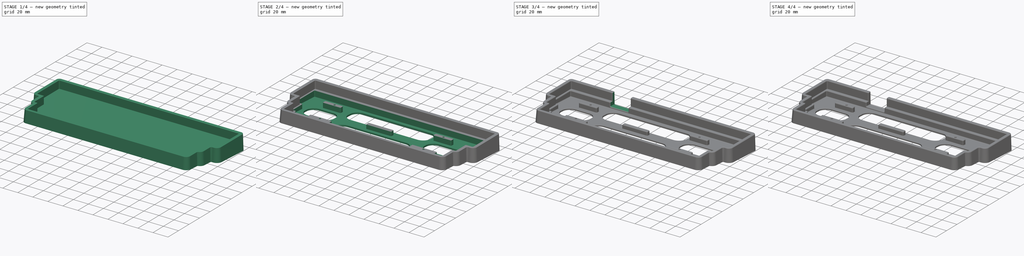
[diagram: build sequence overview — one tinted view per stage of 4, left to right]
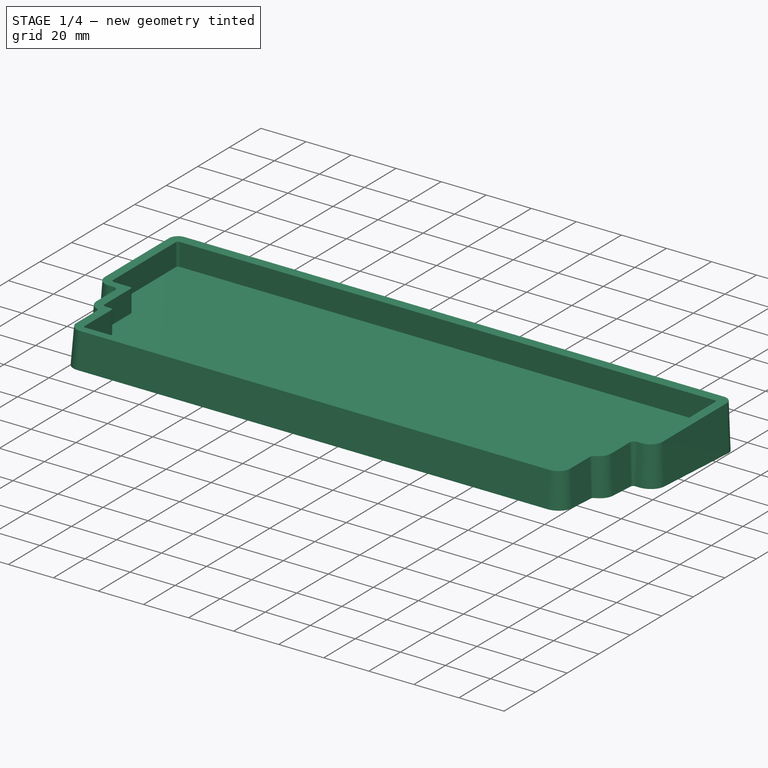
[diagram: stage 1 of 4 — iso view after this stage's code; geometry added in this stage tinted green]
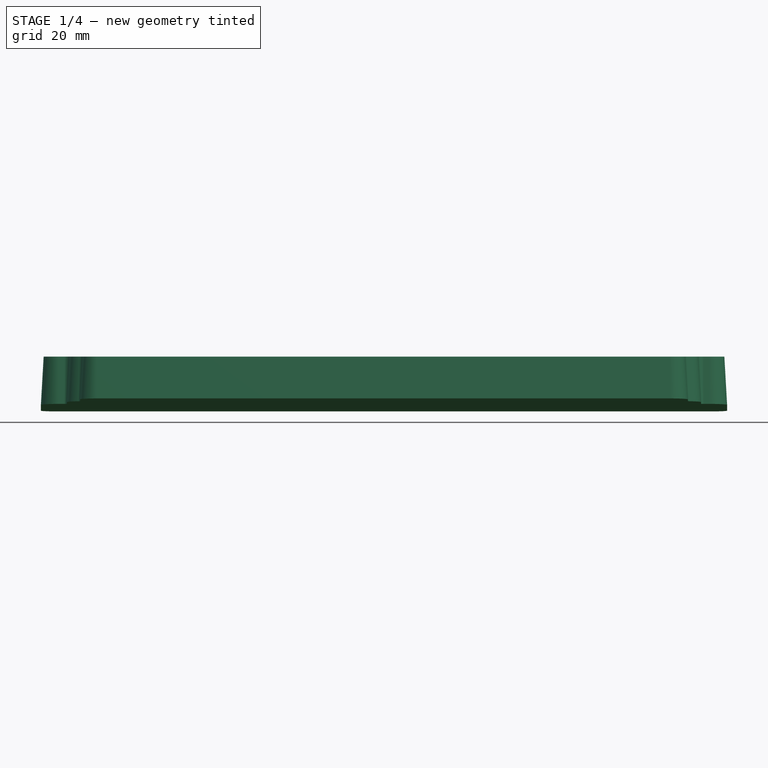
[diagram: stage 1 of 4 — front view after this stage's code; geometry added in this stage tinted green]
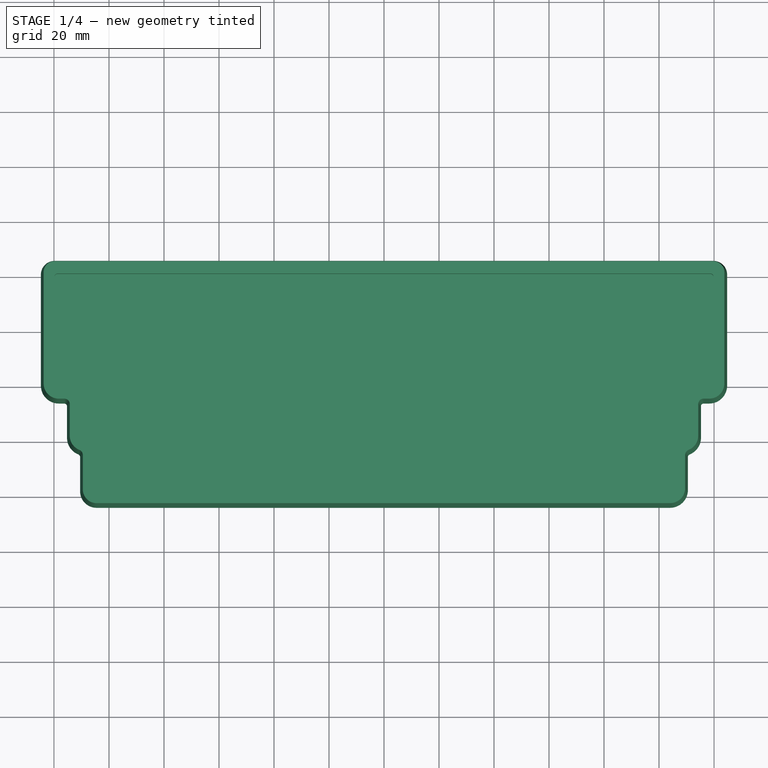
[diagram: stage 1 of 4 — top view after this stage's code; geometry added in this stage tinted green]
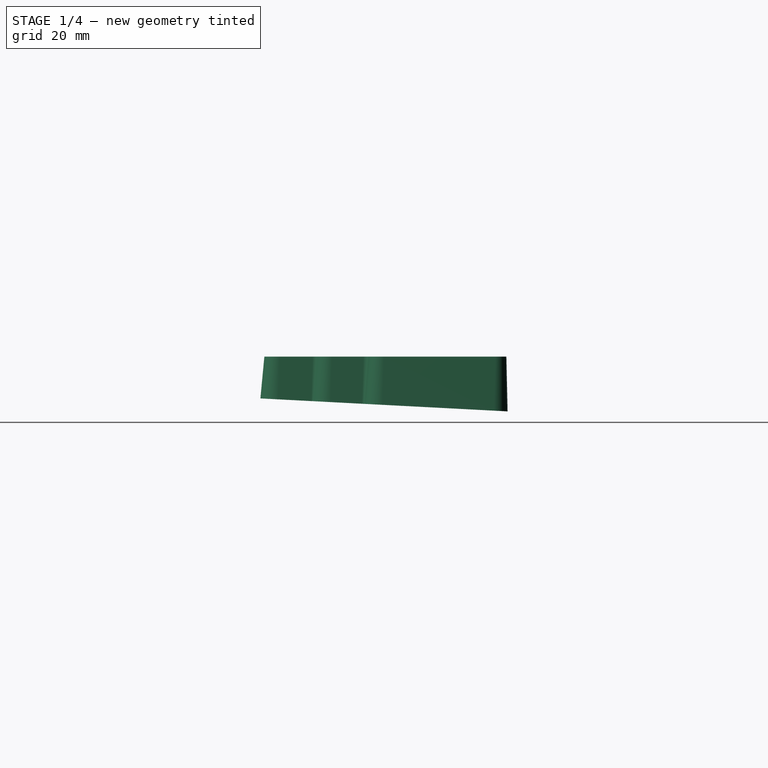
[diagram: stage 1 of 4 — right view after this stage's code; geometry added in this stage tinted green]
FCSTD DOCUMENT  (FreeCAD 0.20R)
Label: case
License: All rights reserved
LicenseURL: http://en.wikipedia.org/wiki/All_rights_reserved
objects: Sketcher::SketchObject×7, PartDesign::Pocket×4, PartDesign::Fillet×3, PartDesign::AdditiveLoft×1, PartDesign::Hole×1, PartDesign::Chamfer×1, PartDesign::Body×1
note: 28 computed .brp shape members not serialized (recipe doc carries the construction recipe); baked Part::Feature solids carry a one-line shape summary decoded from their .brp

FEATURE [Sketcher::SketchObject] Sketch
  AttachmentOffset = pos=(0,0,0) rot=(1,0,0;-0.05236rad)
  FullyConstrained = false
  MapMode = 5
  Placement = pos=(0,0,0) rot=(1,0,0;6.23083rad)
  Support = -> [XY_Plane]
  sketch-geometry (22):
    g0: ArcOfCircle CenterX=-118.25 CenterY=0.5 CenterZ=0 NormalX=0 NormalY=0 NormalZ=1 AngleXU=0 Radius=6.5 StartAngle=3.14159 EndAngle=4.71239
    g1: LineSegment StartX=-115.25 StartY=-7 StartZ=0 EndX=-115.25 EndY=-18.5 EndZ=0
    g2: ArcOfCircle CenterX=-116.25 CenterY=-7 CenterZ=0 NormalX=0 NormalY=0 NormalZ=1 AngleXU=0 Radius=1 StartAngle=0 EndAngle=1.5708
    g3: LineSegment StartX=-118.25 StartY=-6 StartZ=0 EndX=-116.25 EndY=-6 EndZ=0
    g4: ArcOfCircle CenterX=-108.75 CenterY=-18.5 CenterZ=0 NormalX=0 NormalY=0 NormalZ=1 AngleXU=0 Radius=6.5 StartAngle=3.14159 EndAngle=4.33697
    g5: ArcOfCircle CenterX=-111.5 CenterY=-25.4776 CenterZ=0 NormalX=0 NormalY=0 NormalZ=1 AngleXU=0 Radius=1 StartAngle=0 EndAngle=1.19537
    g6: LineSegment StartX=-110.5 StartY=-25.4776 StartZ=0 EndX=-110.5 EndY=-38 EndZ=0
    g7: ArcOfCircle CenterX=-104.5 CenterY=-38 CenterZ=0 NormalX=0 NormalY=0 NormalZ=1 AngleXU=0 Radius=6 StartAngle=3.14159 EndAngle=4.71239
    g8: ArcOfCircle CenterX=104 CenterY=-37.5 CenterZ=0 NormalX=0 NormalY=0 NormalZ=1 AngleXU=0 Radius=6.5 StartAngle=4.71239 EndAngle=6.28319
    g9: LineSegment StartX=110.5 StartY=-25.4776 StartZ=0 EndX=110.5 EndY=-37.5 EndZ=0
    g10: ArcOfCircle CenterX=108.75 CenterY=-18.5 CenterZ=0 NormalX=0 NormalY=0 NormalZ=1 AngleXU=0 Radius=6.5 StartAngle=5.08781 EndAngle=6.28319
    g11: ArcOfCircle CenterX=111.5 CenterY=-25.4776 CenterZ=0 NormalX=0 NormalY=0 NormalZ=1 AngleXU=0 Radius=1 StartAngle=1.94622 EndAngle=3.14159
    g12: LineSegment StartX=115.25 StartY=-7 StartZ=0 EndX=115.25 EndY=-18.5 EndZ=0
    g13: ArcOfCircle CenterX=118.25 CenterY=0.5 CenterZ=0 NormalX=0 NormalY=0 NormalZ=1 AngleXU=0 Radius=6.5 StartAngle=4.71239 EndAngle=6.28319
    g14: LineSegment StartX=118.25 StartY=-6 StartZ=0 EndX=116.25 EndY=-6 EndZ=0
    g15: ArcOfCircle CenterX=116.25 CenterY=-7 CenterZ=0 NormalX=0 NormalY=0 NormalZ=1 AngleXU=0 Radius=1 StartAngle=1.5708 EndAngle=3.14159
    g16: LineSegment StartX=-104.5 StartY=-44 StartZ=0 EndX=104 EndY=-44 EndZ=0
    g17: LineSegment StartX=124.75 StartY=41 StartZ=0 EndX=124.75 EndY=0.5 EndZ=0
    g18: ArcOfCircle CenterX=119.75 CenterY=41 CenterZ=0 NormalX=0 NormalY=0 NormalZ=1 AngleXU=0 Radius=5 StartAngle=0 EndAngle=1.5708
    g19: LineSegment StartX=-124.75 StartY=41 StartZ=0 EndX=-124.75 EndY=0.5 EndZ=0
    g20: LineSegment StartX=119.75 StartY=46 StartZ=0 EndX=-119.75 EndY=46 EndZ=0
    g21: ArcOfCircle CenterX=-119.75 CenterY=41 CenterZ=0 NormalX=0 NormalY=0 NormalZ=1 AngleXU=0 Radius=5 StartAngle=1.5708 EndAngle=3.14159
  constraints (22):
    c: Coincident(g0,g19)
    c: Coincident(g19,g21)
    c: Coincident(g20,g21)
    c: Coincident(g0,g3)
    c: Coincident(g2,g3)
    c: Coincident(g1,g4)
    c: Coincident(g1,g2)
    c: Coincident(g4,g5)
    c: Coincident(g6,g7)
    c: Coincident(g5,g6)
    c: Coincident(g7,g16)
    c: Coincident(g8,g16)
    c: Coincident(g8,g9)
    c: Coincident(g9,g11)
    c: Coincident(g10,g11)
    c: Coincident(g10,g12)
    c: Coincident(g12,g15)
    c: Coincident(g14,g15)
    c: Coincident(g13,g14)
    c: Coincident(g18,g20)
    c: Coincident(g13,g17)
    c: Coincident(g17,g18)
FEATURE [Sketcher::SketchObject] Sketch001
  AttachmentOffset = pos=(0,0.5,17.5) rot=(0,0,1;0rad)
  FullyConstrained = false
  MapMode = 5
  Placement = pos=(0,0.5,17.5) rot=(0,0,1;0rad)
  Support = -> [XY_Plane]
  sketch-geometry (22):
    g0: ArcOfCircle CenterX=-118.25 CenterY=0.5 CenterZ=0 NormalX=0 NormalY=0 NormalZ=1 AngleXU=0 Radius=5.5 StartAngle=3.14159 EndAngle=4.71239
    g1: ArcOfCircle CenterX=-104.5 CenterY=-38 CenterZ=0 NormalX=0 NormalY=0 NormalZ=1 AngleXU=0 Radius=5 StartAngle=3.14159 EndAngle=4.71239
    g2: ArcOfCircle CenterX=104 CenterY=-37.5 CenterZ=0 NormalX=0 NormalY=0 NormalZ=1 AngleXU=0 Radius=5.5 StartAngle=4.71239 EndAngle=6.28319
    g3: ArcOfCircle CenterX=118.25 CenterY=0.5 CenterZ=0 NormalX=0 NormalY=0 NormalZ=1 AngleXU=0 Radius=5.5 StartAngle=4.71239 EndAngle=6.28319
    g4: LineSegment StartX=118.25 StartY=-5 StartZ=0 EndX=116.25 EndY=-5 EndZ=0
    g5: LineSegment StartX=114.25 StartY=-7 StartZ=0 EndX=114.25 EndY=-18.5 EndZ=0
    g6: ArcOfCircle CenterX=116.25 CenterY=-7 CenterZ=0 NormalX=0 NormalY=0 NormalZ=1 AngleXU=0 Radius=2 StartAngle=1.5708 EndAngle=3.14159
    g7: LineSegment StartX=109.5 StartY=-25.4776 StartZ=0 EndX=109.5 EndY=-37.5 EndZ=0
    g8: ArcOfCircle CenterX=108.75 CenterY=-18.5 CenterZ=0 NormalX=0 NormalY=0 NormalZ=1 AngleXU=0 Radius=5.5 StartAngle=5.08781 EndAngle=6.28319
    g9: ArcOfCircle CenterX=111.5 CenterY=-25.4776 CenterZ=0 NormalX=0 NormalY=0 NormalZ=1 AngleXU=0 Radius=2 StartAngle=1.94622 EndAngle=3.14159
    g10: ArcOfCircle CenterX=-108.75 CenterY=-18.5 CenterZ=0 NormalX=0 NormalY=0 NormalZ=1 AngleXU=0 Radius=5.5 StartAngle=3.14159 EndAngle=4.33697
    g11: LineSegment StartX=-109.5 StartY=-25.4776 StartZ=0 EndX=-109.5 EndY=-38 EndZ=0
    g12: ArcOfCircle CenterX=-111.5 CenterY=-25.4776 CenterZ=0 NormalX=0 NormalY=0 NormalZ=1 AngleXU=0 Radius=2 StartAngle=0 EndAngle=1.19537
    g13: LineSegment StartX=-118.25 StartY=-5 StartZ=0 EndX=-116.25 EndY=-5 EndZ=0
    g14: LineSegment StartX=-114.25 StartY=-7 StartZ=0 EndX=-114.25 EndY=-18.5 EndZ=0
    g15: ArcOfCircle CenterX=-116.25 CenterY=-7 CenterZ=0 NormalX=0 NormalY=0 NormalZ=1 AngleXU=0 Radius=2 StartAngle=0 EndAngle=1.5708
    g16: LineSegment StartX=104 StartY=-43 StartZ=0 EndX=-104.5 EndY=-43 EndZ=0
    g17: LineSegment StartX=123.75 StartY=41 StartZ=0 EndX=123.75 EndY=0.5 EndZ=0
    g18: ArcOfCircle CenterX=119.75 CenterY=41 CenterZ=0 NormalX=0 NormalY=0 NormalZ=1 AngleXU=0 Radius=4 StartAngle=0 EndAngle=1.5708
    g19: LineSegment StartX=-123.75 StartY=41 StartZ=0 EndX=-123.75 EndY=0.5 EndZ=0
    g20: LineSegment StartX=119.75 StartY=45 StartZ=0 EndX=-119.75 EndY=45 EndZ=0
    g21: ArcOfCircle CenterX=-119.75 CenterY=41 CenterZ=0 NormalX=0 NormalY=0 NormalZ=1 AngleXU=0 Radius=4 StartAngle=1.5708 EndAngle=3.14159
  constraints (22):
    c: Coincident(g0,g19)
    c: Coincident(g19,g21)
    c: Coincident(g20,g21)
    c: Coincident(g0,g13)
    c: Coincident(g13,g15)
    c: Coincident(g10,g14)
    c: Coincident(g14,g15)
    c: Coincident(g10,g12)
    c: Coincident(g1,g11)
    c: Coincident(g11,g12)
    c: Coincident(g1,g16)
    c: Coincident(g2,g16)
    c: Coincident(g2,g7)
    c: Coincident(g7,g9)
    c: Coincident(g8,g9)
    c: Coincident(g5,g8)
    c: Coincident(g5,g6)
    c: Coincident(g4,g6)
    c: Coincident(g3,g4)
    c: Coincident(g18,g20)
    c: Coincident(g3,g17)
    c: Coincident(g17,g18)
FEATURE [PartDesign::AdditiveLoft] AdditiveLoft
  Closed = true
  Profile = -> Sketch001
  Ruled = true
  Sections = -> [Sketch]
FEATURE [Sketcher::SketchObject] Sketch002
  FullyConstrained = false
  MapMode = 5
  Placement = pos=(0,0,17.5) rot=(0,0,1;0rad)
  Support = -> [AdditiveLoft]
  sketch-geometry (24):
    g0: ArcOfCircle CenterX=-104.5 CenterY=-38 CenterZ=0 NormalX=0 NormalY=0 NormalZ=1 AngleXU=0 Radius=1 StartAngle=3.14159 EndAngle=4.71239
    g1: ArcOfCircle CenterX=-108.75 CenterY=-18.5 CenterZ=0 NormalX=0 NormalY=0 NormalZ=1 AngleXU=0 Radius=1.5 StartAngle=3.14159 EndAngle=4.71239
    g2: ArcOfCircle CenterX=104 CenterY=-37.5 CenterZ=0 NormalX=0 NormalY=0 NormalZ=1 AngleXU=0 Radius=1.5 StartAngle=4.71239 EndAngle=6.28319
    g3: ArcOfCircle CenterX=108.75 CenterY=-18.5 CenterZ=0 NormalX=0 NormalY=0 NormalZ=1 AngleXU=0 Radius=1.5 StartAngle=4.71239 EndAngle=6.28319
    g4: ArcOfCircle CenterX=118.25 CenterY=0.5 CenterZ=0 NormalX=0 NormalY=0 NormalZ=1 AngleXU=0 Radius=1.5 StartAngle=4.71239 EndAngle=6.28319
    g5: LineSegment StartX=-104.5 StartY=-39 StartZ=0 EndX=104 EndY=-39 EndZ=0
    g6: ArcOfCircle CenterX=-118.25 CenterY=0.5 CenterZ=0 NormalX=0 NormalY=0 NormalZ=1 AngleXU=0 Radius=1.5 StartAngle=3.14159 EndAngle=4.71239
    g7: LineSegment StartX=110.25 StartY=-2 StartZ=0 EndX=110.25 EndY=-18.5 EndZ=0
    g8: LineSegment StartX=118.25 StartY=-1 StartZ=0 EndX=111.25 EndY=-1 EndZ=0
    g9: ArcOfCircle CenterX=111.25 CenterY=-2 CenterZ=0 NormalX=0 NormalY=0 NormalZ=1 AngleXU=0 Radius=1 StartAngle=1.5708 EndAngle=3.14159
    g10: LineSegment StartX=105.5 StartY=-21 StartZ=0 EndX=105.5 EndY=-37.5 EndZ=0
    g11: LineSegment StartX=108.75 StartY=-20 StartZ=0 EndX=106.5 EndY=-20 EndZ=0
    g12: ArcOfCircle CenterX=106.5 CenterY=-21 CenterZ=0 NormalX=0 NormalY=0 NormalZ=1 AngleXU=0 Radius=1 StartAngle=1.5708 EndAngle=3.14159
    g13: LineSegment StartX=-108.75 StartY=-20 StartZ=0 EndX=-106.5 EndY=-20 EndZ=0
    g14: LineSegment StartX=-105.5 StartY=-21 StartZ=0 EndX=-105.5 EndY=-38 EndZ=0
    g15: ArcOfCircle CenterX=-106.5 CenterY=-21 CenterZ=0 NormalX=0 NormalY=0 NormalZ=1 AngleXU=0 Radius=1 StartAngle=0 EndAngle=1.5708
    g16: LineSegment StartX=-118.25 StartY=-1 StartZ=0 EndX=-111.25 EndY=-1 EndZ=0
    g17: LineSegment StartX=-110.25 StartY=-2 StartZ=0 EndX=-110.25 EndY=-18.5 EndZ=0
    g18: ArcOfCircle CenterX=-111.25 CenterY=-2 CenterZ=0 NormalX=0 NormalY=0 NormalZ=1 AngleXU=0 Radius=1 StartAngle=0 EndAngle=1.5708
    g19: LineSegment StartX=119.75 StartY=0.5 StartZ=0 EndX=119.75 EndY=40 EndZ=0
    g20: ArcOfCircle CenterX=118.75 CenterY=40 CenterZ=0 NormalX=0 NormalY=0 NormalZ=1 AngleXU=0 Radius=1 StartAngle=0 EndAngle=1.5708
    g21: LineSegment StartX=118.75 StartY=41 StartZ=0 EndX=-118.75 EndY=41 EndZ=0
    g22: LineSegment StartX=-119.75 StartY=40 StartZ=0 EndX=-119.75 EndY=0.5 EndZ=0
    g23: ArcOfCircle CenterX=-118.75 CenterY=40 CenterZ=0 NormalX=0 NormalY=0 NormalZ=1 AngleXU=0 Radius=1 StartAngle=1.5708 EndAngle=3.14159
  constraints (24):
    c: Coincident(g6,g22)
    c: Coincident(g22,g23)
    c: Coincident(g21,g23)
    c: Coincident(g6,g16)
    c: Coincident(g16,g18)
    c: Coincident(g1,g17)
    c: Coincident(g17,g18)
    c: Coincident(g1,g13)
    c: Coincident(g13,g15)
    c: Coincident(g0,g14)
    c: Coincident(g14,g15)
    c: Coincident(g0,g5)
    c: Coincident(g2,g5)
    c: Coincident(g2,g10)
    c: Coincident(g10,g12)
    c: Coincident(g11,g12)
    c: Coincident(g3,g11)
    c: Coincident(g3,g7)
    c: Coincident(g7,g9)
    c: Coincident(g8,g9)
    c: Coincident(g4,g8)
    c: Coincident(g20,g21)
    c: Coincident(g4,g19)
    c: Coincident(g19,g20)
FEATURE [PartDesign::Pocket] Pocket
  BaseFeature = -> AdditiveLoft
  Direction = (0,0,-1)
  Length = 10
  Length2 = 5
  Profile = -> Sketch002
  ReferenceAxis = -> Sketch002 [N_Axis]
  Type = 0
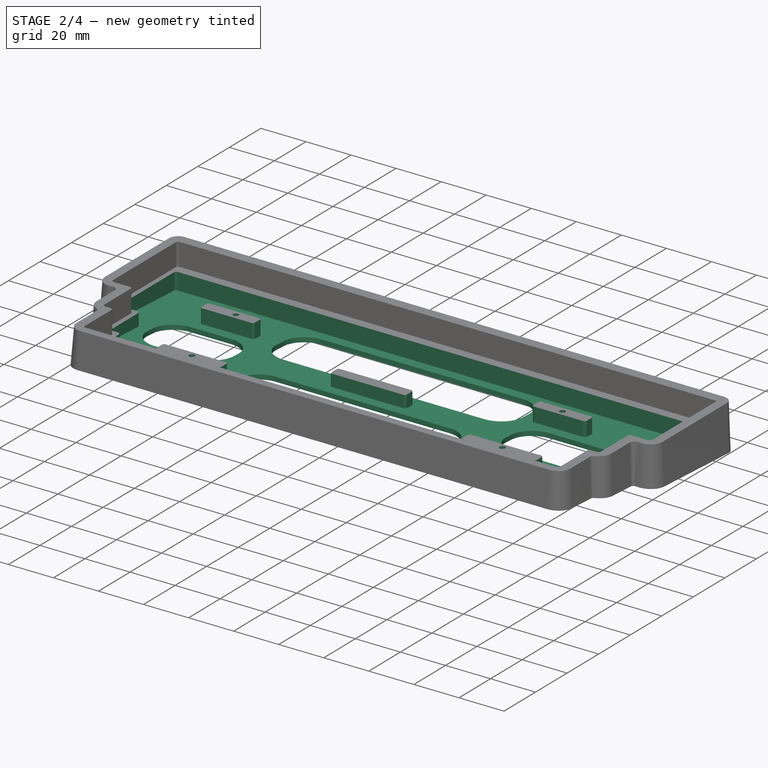
[diagram: stage 2 of 4 — iso view after this stage's code; geometry added in this stage tinted green]
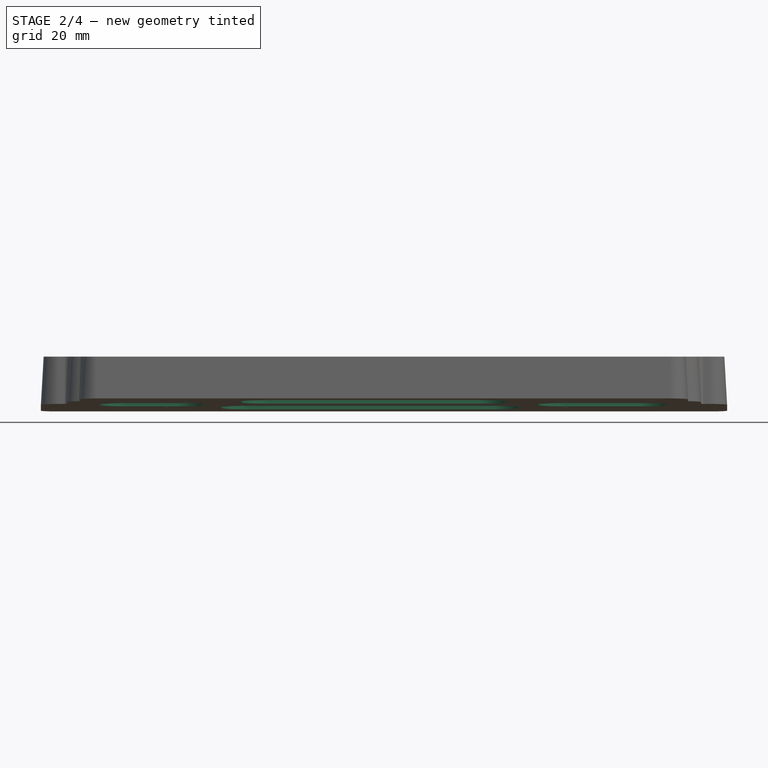
[diagram: stage 2 of 4 — front view after this stage's code; geometry added in this stage tinted green]
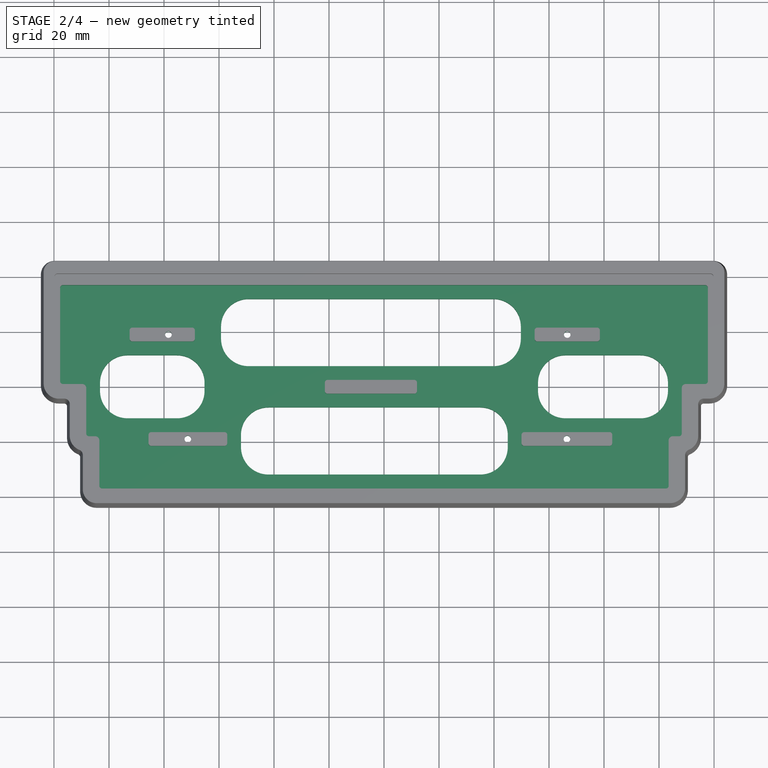
[diagram: stage 2 of 4 — top view after this stage's code; geometry added in this stage tinted green]
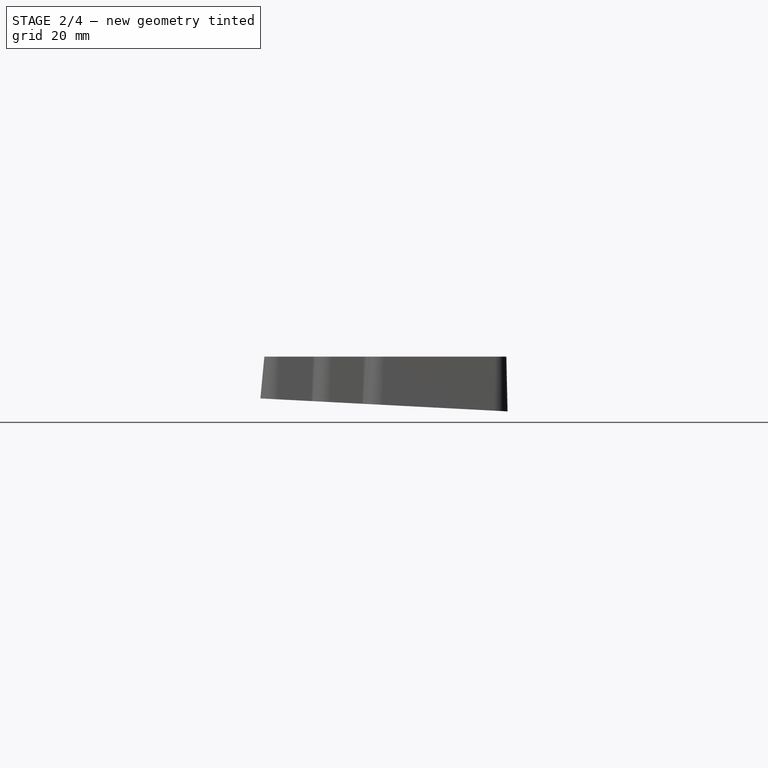
[diagram: stage 2 of 4 — right view after this stage's code; geometry added in this stage tinted green]
FEATURE [Sketcher::SketchObject] Sketch003
  ExternalGeometry = -> [Pocket]
  FullyConstrained = false
  MapMode = 5
  Placement = pos=(0,0,7.5) rot=(0,0,1;0rad)
  Support = -> [Pocket]
  sketch-geometry (64):
    g0: ArcOfCircle CenterX=-109.75 CenterY=-0.5 CenterZ=0 NormalX=0 NormalY=0 NormalZ=1 AngleXU=0 Radius=1.5 StartAngle=0 EndAngle=1.5708
    g1: ArcOfCircle CenterX=-105 CenterY=-19.5 CenterZ=0 NormalX=0 NormalY=0 NormalZ=1 AngleXU=0 Radius=1.5 StartAngle=0 EndAngle=1.5708
    g2: ArcOfCircle CenterX=109.75 CenterY=-0.5 CenterZ=0 NormalX=0 NormalY=0 NormalZ=1 AngleXU=0 Radius=1.5 StartAngle=1.5708 EndAngle=3.14159
    g3: ArcOfCircle CenterX=105 CenterY=-19.5 CenterZ=0 NormalX=0 NormalY=0 NormalZ=1 AngleXU=0 Radius=1.5 StartAngle=1.5708 EndAngle=3.14159
    g4: LineSegment StartX=103.5 StartY=-19.5 StartZ=0 EndX=103.5 EndY=-36 EndZ=0
    g5: ArcOfCircle CenterX=102.5 CenterY=-36 CenterZ=0 NormalX=0 NormalY=0 NormalZ=1 AngleXU=0 Radius=1 StartAngle=4.71239 EndAngle=6.28319
    g6: LineSegment StartX=116.75 StartY=1 StartZ=0 EndX=109.75 EndY=1 EndZ=0
    g7: ArcOfCircle CenterX=116.75 CenterY=2 CenterZ=0 NormalX=0 NormalY=0 NormalZ=1 AngleXU=0 Radius=1 StartAngle=4.71239 EndAngle=6.28319
    g8: LineSegment StartX=117.75 StartY=36 StartZ=0 EndX=117.75 EndY=2 EndZ=0
    g9: ArcOfCircle CenterX=116.75 CenterY=36 CenterZ=0 NormalX=0 NormalY=0 NormalZ=1 AngleXU=0 Radius=1 StartAngle=0 EndAngle=1.5708
    g10: LineSegment StartX=116.75 StartY=37 StartZ=0 EndX=-116.75 EndY=37 EndZ=0
    g11: ArcOfCircle CenterX=-116.75 CenterY=36 CenterZ=0 NormalX=0 NormalY=0 NormalZ=1 AngleXU=0 Radius=1 StartAngle=1.5708 EndAngle=3.14159
    g12: LineSegment StartX=-116.75 StartY=1 StartZ=0 EndX=-109.75 EndY=1 EndZ=0
    g13: LineSegment StartX=-117.75 StartY=36 StartZ=0 EndX=-117.75 EndY=2 EndZ=0
    g14: ArcOfCircle CenterX=-116.75 CenterY=2 CenterZ=0 NormalX=0 NormalY=0 NormalZ=1 AngleXU=0 Radius=1 StartAngle=3.14159 EndAngle=4.71239
    g15: LineSegment StartX=-107.25 StartY=-18 StartZ=0 EndX=-105 EndY=-18 EndZ=0
    g16: LineSegment StartX=-108.25 StartY=-0.5 StartZ=0 EndX=-108.25 EndY=-17 EndZ=0
    g17: ArcOfCircle CenterX=-107.25 CenterY=-17 CenterZ=0 NormalX=0 NormalY=0 NormalZ=1 AngleXU=0 Radius=1 StartAngle=3.14159 EndAngle=4.71239
    g18: LineSegment StartX=-102.5 StartY=-37 StartZ=0 EndX=102.5 EndY=-37 EndZ=0
    g19: LineSegment StartX=-103.5 StartY=-19.5 StartZ=0 EndX=-103.5 EndY=-36 EndZ=0
    g20: ArcOfCircle CenterX=-102.5 CenterY=-36 CenterZ=0 NormalX=0 NormalY=0 NormalZ=1 AngleXU=0 Radius=1 StartAngle=3.14159 EndAngle=4.71239
    g21: LineSegment StartX=107.25 StartY=-18 StartZ=0 EndX=105 EndY=-18 EndZ=0
    g22: LineSegment StartX=108.25 StartY=-0.5 StartZ=0 EndX=108.25 EndY=-17 EndZ=0
    g23: ArcOfCircle CenterX=107.25 CenterY=-17 CenterZ=0 NormalX=0 NormalY=0 NormalZ=1 AngleXU=0 Radius=1 StartAngle=4.71239 EndAngle=6.28319
    g24: LineSegment StartX=77.5 StartY=16.5 StartZ=0 EndX=55.75 EndY=16.5 EndZ=0
    g25: ArcOfCircle CenterX=55.75 CenterY=17.5 CenterZ=0 NormalX=0 NormalY=0 NormalZ=1 AngleXU=-3.14159 Radius=1 StartAngle=0 EndAngle=1.5708
    g26: LineSegment StartX=54.75 StartY=17.5 StartZ=0 EndX=54.75 EndY=20.5 EndZ=0
    g27: ArcOfCircle CenterX=55.75 CenterY=20.5 CenterZ=0 NormalX=0 NormalY=0 NormalZ=1 AngleXU=-3.14159 Radius=1 StartAngle=4.71239 EndAngle=6.28319
    g28: LineSegment StartX=55.75 StartY=21.5 StartZ=0 EndX=77.5 EndY=21.5 EndZ=0
    g29: ArcOfCircle CenterX=77.5 CenterY=20.5 CenterZ=0 NormalX=0 NormalY=0 NormalZ=1 AngleXU=-3.14159 Radius=1 StartAngle=3.14159 EndAngle=4.71239
    g30: LineSegment StartX=78.5 StartY=20.5 StartZ=0 EndX=78.5 EndY=17.5 EndZ=0
    g31: ArcOfCircle CenterX=77.5 CenterY=17.5 CenterZ=0 NormalX=0 NormalY=0 NormalZ=1 AngleXU=-3.14159 Radius=1 StartAngle=1.5708 EndAngle=3.14159
    g32: LineSegment StartX=51 StartY=-16.5 StartZ=0 EndX=82 EndY=-16.5 EndZ=0
    g33: ArcOfCircle CenterX=82 CenterY=-17.5 CenterZ=0 NormalX=0 NormalY=0 NormalZ=1 AngleXU=-3.14159 Radius=1 StartAngle=3.14159 EndAngle=4.71239
    g34: LineSegment StartX=83 StartY=-17.5 StartZ=0 EndX=83 EndY=-20.5 EndZ=0
    g35: ArcOfCircle CenterX=82 CenterY=-20.5 CenterZ=0 NormalX=0 NormalY=0 NormalZ=1 AngleXU=-3.14159 Radius=1 StartAngle=1.5708 EndAngle=3.14159
    g36: LineSegment StartX=82 StartY=-21.5 StartZ=0 EndX=51 EndY=-21.5 EndZ=0
    g37: ArcOfCircle CenterX=51 CenterY=-20.5 CenterZ=0 NormalX=0 NormalY=0 NormalZ=1 AngleXU=-3.14159 Radius=1 StartAngle=0 EndAngle=1.5708
    g38: LineSegment StartX=50 StartY=-20.5 StartZ=0 EndX=50 EndY=-17.5 EndZ=0
    g39: ArcOfCircle CenterX=51 CenterY=-17.5 CenterZ=0 NormalX=0 NormalY=0 NormalZ=1 AngleXU=-3.14159 Radius=1 StartAngle=4.71239 EndAngle=6.28319
    g40: LineSegment StartX=-20.5 StartY=2.5 StartZ=0 EndX=11 EndY=2.5 EndZ=0
    g41: ArcOfCircle CenterX=11 CenterY=1.5 CenterZ=0 NormalX=0 NormalY=0 NormalZ=1 AngleXU=-3.14159 Radius=1 StartAngle=3.14159 EndAngle=4.71239
    g42: LineSegment StartX=12 StartY=1.5 StartZ=0 EndX=12 EndY=-1.5 EndZ=0
    g43: ArcOfCircle CenterX=11 CenterY=-1.5 CenterZ=0 NormalX=0 NormalY=0 NormalZ=1 AngleXU=-3.14159 Radius=1 StartAngle=1.5708 EndAngle=3.14159
    g44: LineSegment StartX=11 StartY=-2.5 StartZ=0 EndX=-20.5 EndY=-2.5 EndZ=0
    g45: ArcOfCircle CenterX=-20.5 CenterY=-1.5 CenterZ=0 NormalX=0 NormalY=0 NormalZ=1 AngleXU=-3.14159 Radius=1 StartAngle=0 EndAngle=1.5708
    g46: LineSegment StartX=-21.5 StartY=-1.5 StartZ=0 EndX=-21.5 EndY=1.5 EndZ=0
    g47: ArcOfCircle CenterX=-20.5 CenterY=1.5 CenterZ=0 NormalX=0 NormalY=0 NormalZ=1 AngleXU=-3.14159 Radius=1 StartAngle=4.71239 EndAngle=6.28319
    g48: LineSegment StartX=-84.625 StartY=-21.5 StartZ=0 EndX=-58 EndY=-21.5 EndZ=0
    g49: ArcOfCircle CenterX=-58 CenterY=-20.5 CenterZ=0 NormalX=0 NormalY=0 NormalZ=1 AngleXU=0 Radius=1 StartAngle=4.71239 EndAngle=6.28319
    g50: LineSegment StartX=-57 StartY=-20.5 StartZ=0 EndX=-57 EndY=-17.5 EndZ=0
    g51: ArcOfCircle CenterX=-58 CenterY=-17.5 CenterZ=0 NormalX=0 NormalY=0 NormalZ=1 AngleXU=0 Radius=1 StartAngle=0 EndAngle=1.5708
    g52: LineSegment StartX=-58 StartY=-16.5 StartZ=0 EndX=-84.625 EndY=-16.5 EndZ=0
    g53: ArcOfCircle CenterX=-84.625 CenterY=-17.5 CenterZ=0 NormalX=0 NormalY=0 NormalZ=1 AngleXU=0 Radius=1 StartAngle=1.5708 EndAngle=3.14159
    g54: LineSegment StartX=-85.625 StartY=-17.5 StartZ=0 EndX=-85.625 EndY=-20.5 EndZ=0
    g55: ArcOfCircle CenterX=-84.625 CenterY=-20.5 CenterZ=0 NormalX=0 NormalY=0 NormalZ=1 AngleXU=0 Radius=1 StartAngle=3.14159 EndAngle=4.71239
    g56: LineSegment StartX=-91.5 StartY=16.5 StartZ=0 EndX=-69.75 EndY=16.5 EndZ=0
    g57: ArcOfCircle CenterX=-69.75 CenterY=17.5 CenterZ=0 NormalX=0 NormalY=0 NormalZ=1 AngleXU=0 Radius=1 StartAngle=4.71239 EndAngle=6.28319
    g58: LineSegment StartX=-68.75 StartY=17.5 StartZ=0 EndX=-68.75 EndY=20.5 EndZ=0
    g59: ArcOfCircle CenterX=-69.75 CenterY=20.5 CenterZ=0 NormalX=0 NormalY=0 NormalZ=1 AngleXU=0 Radius=1 StartAngle=0 EndAngle=1.5708
    g60: LineSegment StartX=-69.75 StartY=21.5 StartZ=0 EndX=-91.5 EndY=21.5 EndZ=0
    g61: ArcOfCircle CenterX=-91.5 CenterY=20.5 CenterZ=0 NormalX=0 NormalY=0 NormalZ=1 AngleXU=0 Radius=1 StartAngle=1.5708 EndAngle=3.14159
    g62: LineSegment StartX=-92.5 StartY=20.5 StartZ=0 EndX=-92.5 EndY=17.5 EndZ=0
    g63: ArcOfCircle CenterX=-91.5 CenterY=17.5 CenterZ=0 NormalX=0 NormalY=0 NormalZ=1 AngleXU=0 Radius=1 StartAngle=3.14159 EndAngle=4.71239
  constraints (81):
    c: Coincident(g13,g14)
    c: Coincident(g11,g13)
    c: Coincident(g12,g14)
    c: Coincident(g10,g11)
    c: Coincident(g0,g12)
    c: Coincident(g16,g17)
    c: Coincident(g0,g16)
    c: Coincident(g15,g17)
    c: Coincident(g1,g15)
    c: Coincident(g19,g20)
    c: Coincident(g1,g19)
    c: Coincident(g18,g20)
    c: Coincident(g62,g63)
    c: Coincident(g61,g62)
    c: Coincident(g56,g63)
    c: Coincident(g60,g61)
    c: Coincident(g54,g55)
    c: Coincident(g53,g54)
    c: Coincident(g48,g55)
    c: Coincident(g52,g53)
    c: Coincident(g56,g57)
    c: Coincident(g59,g60)
    c: Coincident(g57,g58)
    c: Coincident(g58,g59)
    c: Coincident(g48,g49)
    c: Coincident(g51,g52)
    c: Coincident(g49,g50)
    c: Coincident(g50,g51)
    c: Coincident(g45,g46)
    c: Coincident(g46,g47)
    c: Coincident(g44,g45)
    c: Coincident(g40,g47)
    c: Coincident(g43,g44)
    c: Coincident(g40,g41)
    c: Coincident(g42,g43)
    c: Coincident(g41,g42)
    c: Coincident(g37,g38)
    c: Coincident(g38,g39)
    c: Coincident(g36,g37)
    c: Coincident(g32,g39)
    c: Coincident(g25,g26)
    c: Coincident(g26,g27)
    c: Coincident(g24,g25)
    c: Coincident(g27,g28)
    c: Coincident(g24,g31)
    c: Coincident(g28,g29)
    c: Coincident(g30,g31)
    c: Coincident(g29,g30)
    c: Coincident(g35,g36)
    c: Coincident(g32,g33)
    c: Coincident(g34,g35)
    c: Coincident(g33,g34)
    c: Coincident(g5,g18)
    c: Coincident(g4,g5)
    c: Coincident(g3,g4)
    c: Coincident(g3,g21)
    c: Coincident(g21,g23)
    c: Coincident(g22,g23)
    c: Coincident(g2,g22)
    c: Coincident(g2,g6)
    c: Coincident(g6,g7)
    c: Coincident(g9,g10)
    c: Coincident(g7,g8)
    c: Coincident(g8,g9)
    c: Distance(g59,g-3) = 50
    c: Vertical(g57,g59)
    c: Equal(g57,g59)
    c: Radius(g57) = 1
    c: Horizontal(g60)
    c: Horizontal(g56)
    c: Distance(g57,g59) = 3
    c: Vertical(g62)
    c: Block(g61)
    c: Block(g62)
    c: Block(g63)
    c: Distance(g62) = 3
    c: Vertical(g56,g63)
    c: Vertical(g60,g61)
    c: Block(g59)
    c: Block(g58)
    c: Block(g57)
FEATURE [Sketcher::SketchObject] Sketch004
  FullyConstrained = false
  MapMode = 5
  Placement = pos=(0,0,7.5) rot=(0,0,1;0rad)
  Support = -> [Pocket]
  sketch-geometry (4):
    g0: Circle CenterX=-78.375 CenterY=19 CenterZ=0 NormalX=0 NormalY=0 NormalZ=-1 AngleXU=0 Radius=1.1
    g1: Circle CenterX=-71.3125 CenterY=-19 CenterZ=0 NormalX=0 NormalY=0 NormalZ=-1 AngleXU=0 Radius=1.1
    g2: Circle CenterX=66.5 CenterY=-19 CenterZ=0 NormalX=0 NormalY=0 NormalZ=-1 AngleXU=0 Radius=1.1
    g3: Circle CenterX=66.625 CenterY=19 CenterZ=0 NormalX=0 NormalY=0 NormalZ=-1 AngleXU=0 Radius=1.1
FEATURE [PartDesign::Pocket] Pocket001
  BaseFeature = -> Pocket
  Direction = (0,0,-1)
  Length = 0
  Length2 = 5
  Offset = -2
  Profile = -> Sketch003
  ReferenceAxis = -> Sketch003 [N_Axis]
  Type = 3
  UpToFace = -> Pocket [Face48]
FEATURE [PartDesign::Hole] Hole
  BaseFeature = -> Pocket001
  CustomThreadClearance = 0
  Depth = 536.877
  DepthType = 1
  Diameter = 2.42
  DrillForDepth = false
  DrillPoint = 1
  DrillPointAngle = 118
  HoleCutCountersinkAngle = 90
  HoleCutCustomValues = false
  HoleCutDepth = 0
  HoleCutDiameter = 6.1
  HoleCutType = 0
  ModelThread = false
  Profile = -> Sketch004
  Tapered = false
  TaperedAngle = 90
  ThreadClass = 0
  ThreadDepth = 536.877
  ThreadDepthType = 0
  ThreadDirection = 0
  ThreadFit = 0
  ThreadSize = 7
  ThreadType = 1
  Threaded = false
  UseCustomThreadClearance = false
FEATURE [Sketcher::SketchObject] Sketch005
  FullyConstrained = false
  MapMode = 5
  Placement = pos=(0,0.104528,1.99452) rot=(-1,0,0;0.05236rad)
  Support = -> [Hole]
  sketch-geometry (32):
    g0: ArcOfCircle CenterX=-49.25 CenterY=22 CenterZ=0 NormalX=0 NormalY=0 NormalZ=1 AngleXU=0 Radius=10 StartAngle=1.5708 EndAngle=3.14159
    g1: LineSegment StartX=-59.25 StartY=17.5 StartZ=0 EndX=-59.25 EndY=22 EndZ=0
    g2: ArcOfCircle CenterX=-49.25 CenterY=17.5 CenterZ=0 NormalX=0 NormalY=0 NormalZ=1 AngleXU=0 Radius=10 StartAngle=3.14159 EndAngle=4.71239
    g3: LineSegment StartX=-49.25 StartY=7.5 StartZ=0 EndX=39.75 EndY=7.5 EndZ=0
    g4: ArcOfCircle CenterX=39.75 CenterY=17.5 CenterZ=0 NormalX=0 NormalY=0 NormalZ=1 AngleXU=0 Radius=10 StartAngle=4.71239 EndAngle=6.28319
    g5: LineSegment StartX=49.75 StartY=17.5 StartZ=0 EndX=49.75 EndY=22 EndZ=0
    g6: LineSegment StartX=39.75 StartY=32 StartZ=0 EndX=-49.25 EndY=32 EndZ=0
    g7: ArcOfCircle CenterX=39.75 CenterY=22 CenterZ=0 NormalX=0 NormalY=0 NormalZ=1 AngleXU=0 Radius=10 StartAngle=0 EndAngle=1.5708
    g8: ArcOfCircle CenterX=-42 CenterY=-22 CenterZ=0 NormalX=0 NormalY=0 NormalZ=1 AngleXU=0 Radius=10 StartAngle=3.14159 EndAngle=4.71239
    g9: LineSegment StartX=-52 StartY=-17.5 StartZ=0 EndX=-52 EndY=-22 EndZ=0
    g10: ArcOfCircle CenterX=-42 CenterY=-17.5 CenterZ=0 NormalX=0 NormalY=0 NormalZ=1 AngleXU=0 Radius=10 StartAngle=1.5708 EndAngle=3.14159
    g11: LineSegment StartX=35 StartY=-7.5 StartZ=0 EndX=-42 EndY=-7.5 EndZ=0
    g12: ArcOfCircle CenterX=35 CenterY=-17.5 CenterZ=0 NormalX=0 NormalY=0 NormalZ=1 AngleXU=0 Radius=10 StartAngle=0 EndAngle=1.5708
    g13: LineSegment StartX=-42 StartY=-32 StartZ=0 EndX=35 EndY=-32 EndZ=0
    g14: ArcOfCircle CenterX=35 CenterY=-22 CenterZ=0 NormalX=0 NormalY=0 NormalZ=1 AngleXU=0 Radius=10 StartAngle=4.71239 EndAngle=6.28319
    g15: LineSegment StartX=45 StartY=-17.5 StartZ=0 EndX=45 EndY=-22 EndZ=0
    g16: ArcOfCircle CenterX=66 CenterY=1.5 CenterZ=0 NormalX=0 NormalY=0 NormalZ=1 AngleXU=0 Radius=10 StartAngle=1.5708 EndAngle=3.14159
    g17: LineSegment StartX=93.25 StartY=11.5 StartZ=0 EndX=66 EndY=11.5 EndZ=0
    g18: ArcOfCircle CenterX=93.25 CenterY=1.5 CenterZ=0 NormalX=0 NormalY=0 NormalZ=1 AngleXU=0 Radius=10 StartAngle=0 EndAngle=1.5708
    g19: LineSegment StartX=103.25 StartY=-1.5 StartZ=0 EndX=103.25 EndY=1.5 EndZ=0
    g20: ArcOfCircle CenterX=93.25 CenterY=-1.5 CenterZ=0 NormalX=0 NormalY=0 NormalZ=1 AngleXU=0 Radius=10 StartAngle=4.71239 EndAngle=6.28319
    g21: LineSegment StartX=66 StartY=-11.5 StartZ=0 EndX=93.25 EndY=-11.5 EndZ=0
    g22: LineSegment StartX=56 StartY=-1.5 StartZ=0 EndX=56 EndY=1.5 EndZ=0
    g23: ArcOfCircle CenterX=66 CenterY=-1.5 CenterZ=0 NormalX=0 NormalY=0 NormalZ=1 AngleXU=0 Radius=10 StartAngle=3.14159 EndAngle=4.71239
    g24: ArcOfCircle CenterX=-75.25 CenterY=1.5 CenterZ=0 NormalX=0 NormalY=0 NormalZ=1 AngleXU=0 Radius=10 StartAngle=0 EndAngle=1.5708
    g25: LineSegment StartX=-65.25 StartY=-1.5 StartZ=0 EndX=-65.25 EndY=1.5 EndZ=0
    g26: ArcOfCircle CenterX=-75.25 CenterY=-1.5 CenterZ=0 NormalX=0 NormalY=0 NormalZ=1 AngleXU=0 Radius=10 StartAngle=4.71239 EndAngle=6.28319
    g27: LineSegment StartX=-75.25 StartY=-11.5 StartZ=0 EndX=-93.25 EndY=-11.5 EndZ=0
    g28: ArcOfCircle CenterX=-93.25 CenterY=-1.5 CenterZ=0 NormalX=0 NormalY=0 NormalZ=1 AngleXU=0 Radius=10 StartAngle=3.14159 EndAngle=4.71239
    g29: LineSegment StartX=-103.25 StartY=1.5 StartZ=0 EndX=-103.25 EndY=-1.5 EndZ=0
    g30: LineSegment StartX=-93.25 StartY=11.5 StartZ=0 EndX=-75.25 EndY=11.5 EndZ=0
    g31: ArcOfCircle CenterX=-93.25 CenterY=1.5 CenterZ=0 NormalX=0 NormalY=0 NormalZ=1 AngleXU=0 Radius=10 StartAngle=1.5708 EndAngle=3.14159
  constraints (32):
    c: Coincident(g28,g29)
    c: Coincident(g29,g31)
    c: Coincident(g27,g28)
    c: Coincident(g30,g31)
    c: Coincident(g26,g27)
    c: Coincident(g24,g30)
    c: Coincident(g25,g26)
    c: Coincident(g24,g25)
    c: Coincident(g1,g2)
    c: Coincident(g0,g1)
    c: Coincident(g8,g9)
    c: Coincident(g9,g10)
    c: Coincident(g2,g3)
    c: Coincident(g0,g6)
    c: Coincident(g8,g13)
    c: Coincident(g10,g11)
    c: Coincident(g13,g14)
    c: Coincident(g11,g12)
    c: Coincident(g3,g4)
    c: Coincident(g6,g7)
    c: Coincident(g14,g15)
    c: Coincident(g12,g15)
    c: Coincident(g4,g5)
    c: Coincident(g5,g7)
    c: Coincident(g22,g23)
    c: Coincident(g16,g22)
    c: Coincident(g21,g23)
    c: Coincident(g16,g17)
    c: Coincident(g20,g21)
    c: Coincident(g17,g18)
    c: Coincident(g19,g20)
    c: Coincident(g18,g19)
FEATURE [PartDesign::Pocket] Pocket002
  BaseFeature = -> Hole
  Direction = (0,-0.052336,-0.99863)
  Length = 5
  Length2 = 5
  Profile = -> Sketch005
  ReferenceAxis = -> Sketch005 [N_Axis]
  Type = 1
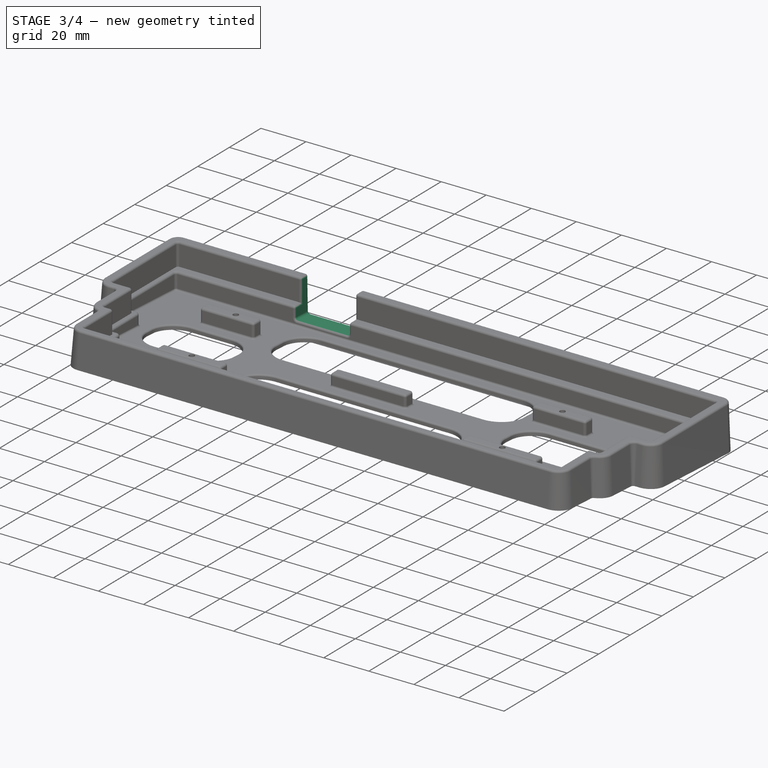
[diagram: stage 3 of 4 — iso view after this stage's code; geometry added in this stage tinted green]
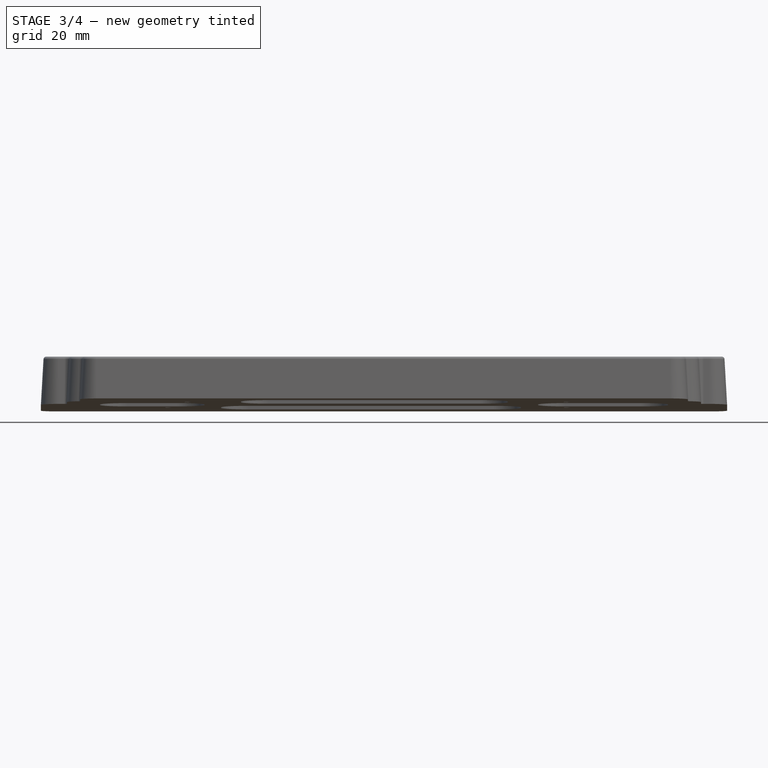
[diagram: stage 3 of 4 — front view after this stage's code; geometry added in this stage tinted green]
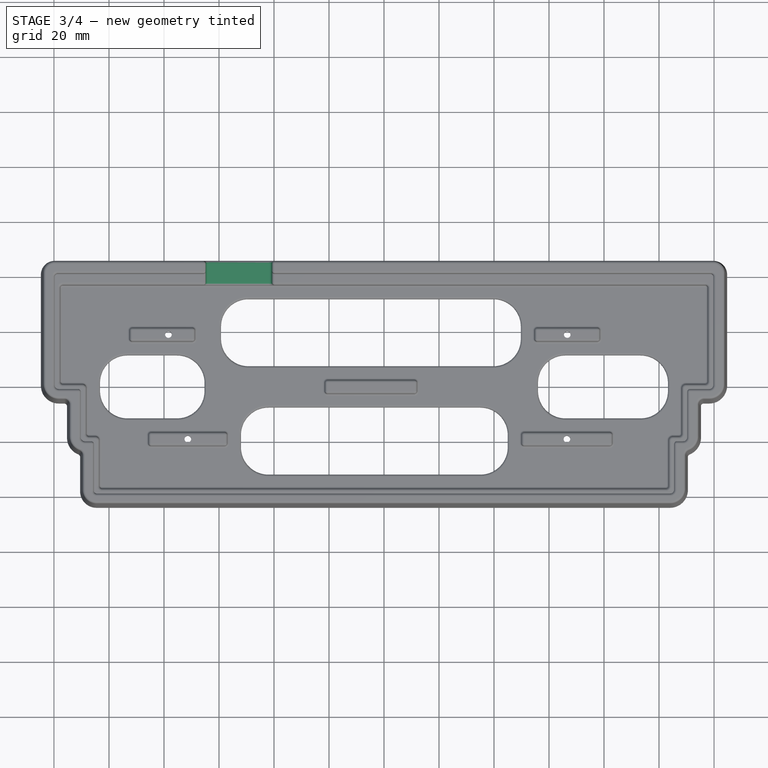
[diagram: stage 3 of 4 — top view after this stage's code; geometry added in this stage tinted green]
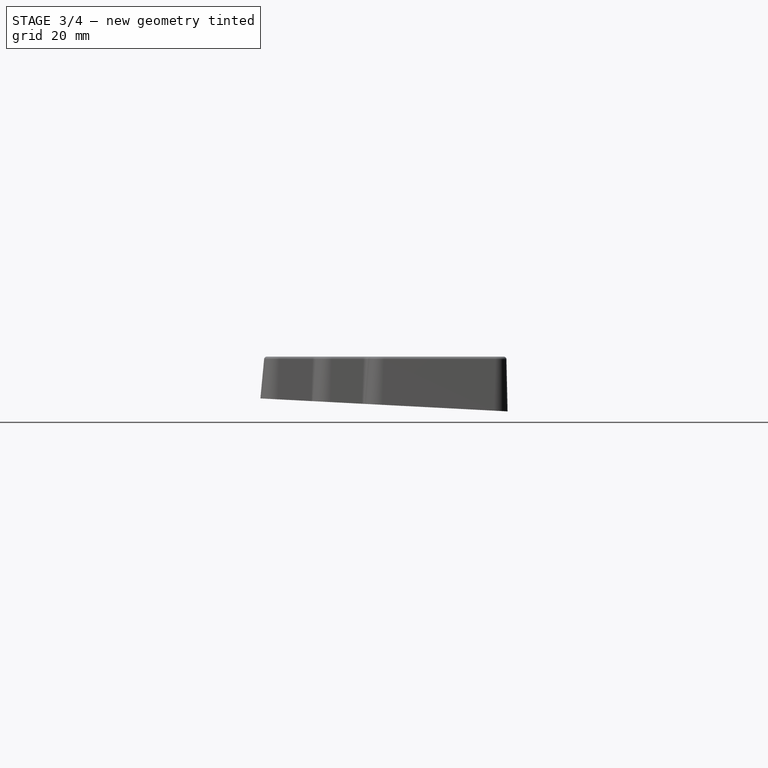
[diagram: stage 3 of 4 — right view after this stage's code; geometry added in this stage tinted green]
FEATURE [Sketcher::SketchObject] Sketch006
  ExternalGeometry = -> [Pocket]
  FullyConstrained = true
  MapMode = 5
  Placement = pos=(0,0,17.5) rot=(0,0,1;0rad)
  Support = -> [Pocket]
  sketch-geometry (4):
    g0: LineSegment StartX=-64.75 StartY=55 StartZ=0 EndX=-40.75 EndY=55 EndZ=0
    g1: LineSegment StartX=-40.75 StartY=55 StartZ=0 EndX=-40.75 EndY=25 EndZ=0
    g2: LineSegment StartX=-40.75 StartY=25 StartZ=0 EndX=-64.75 EndY=25 EndZ=0
    g3: LineSegment StartX=-64.75 StartY=25 StartZ=0 EndX=-64.75 EndY=55 EndZ=0
  constraints (12):
    c: Coincident(g0,g1)
    c: Coincident(g1,g2)
    c: Coincident(g2,g3)
    c: Coincident(g3,g0)
    c: Horizontal(g0)
    c: Horizontal(g2)
    c: Vertical(g1)
    c: Vertical(g3)
    c: Distance(g-3,g3) = 55
    c: Distance(g0) = 24
    c: Distance(g3) = 30
    c: DistanceY(g-3,g0) = 15
FEATURE [PartDesign::Pocket] Pocket003
  BaseFeature = -> Pocket002
  Direction = (0,0,-1)
  Length = 0
  Length2 = 5
  Offset = -4
  Profile = -> Sketch006
  ReferenceAxis = -> Sketch006 [N_Axis]
  Type = 3
  UpToFace = -> Pocket002 [Face48]
FEATURE [PartDesign::Fillet] Fillet
  Base = -> Pocket003 [Face23,Face52,Face49,Face1,Edge192,Edge377,Edge425,Edge398,Edge406,Edge392]
  BaseFeature = -> Pocket003
  Radius = 1
  SupportTransform = false
  UseAllEdges = false
FEATURE [PartDesign::Fillet] Fillet001
  Base = -> Fillet [Face189]
  BaseFeature = -> Fillet
  Radius = 0.75
  SupportTransform = false
  UseAllEdges = false
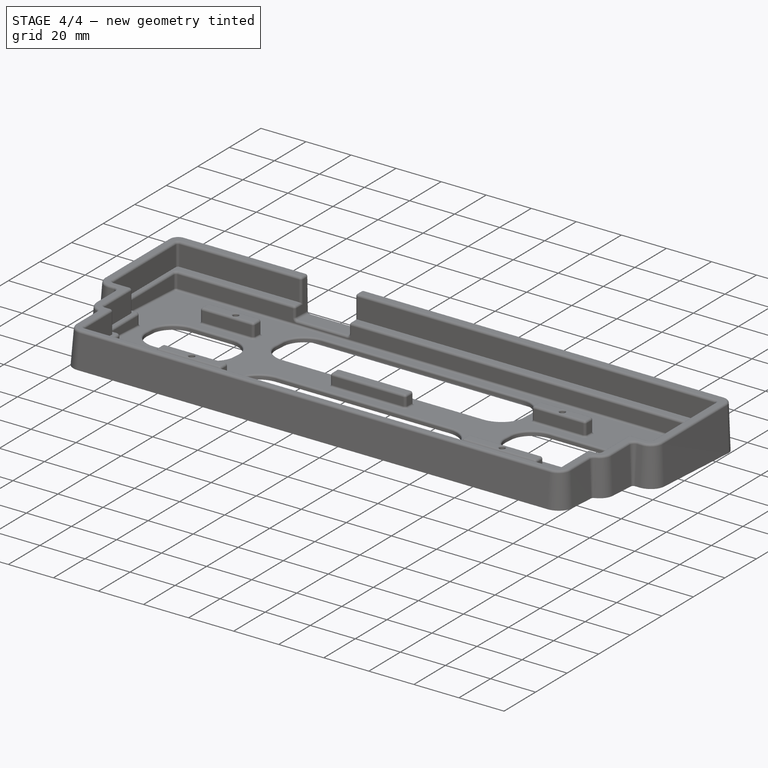
[diagram: stage 4 of 4 — iso view after this stage's code; geometry added in this stage tinted green]
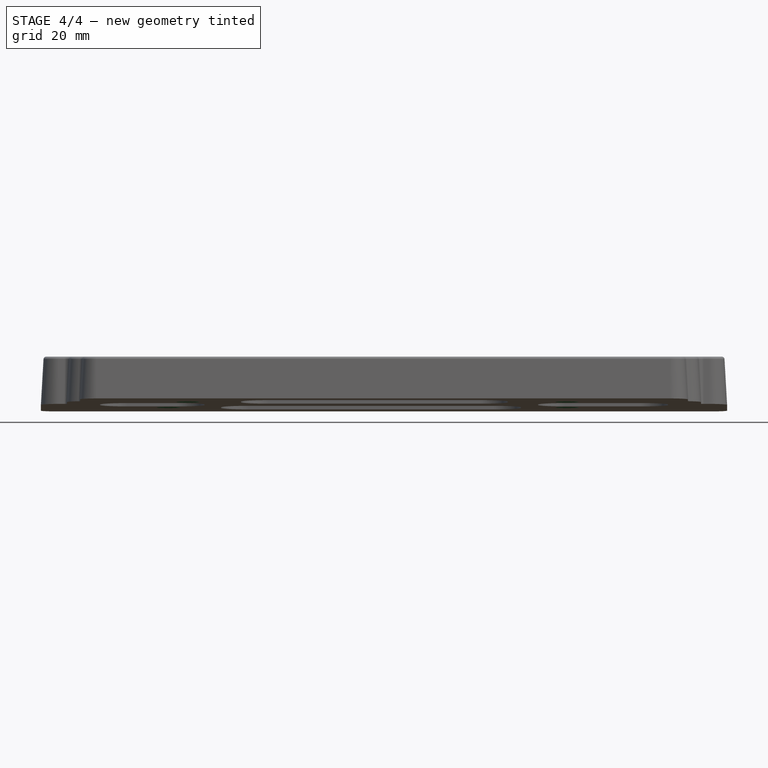
[diagram: stage 4 of 4 — front view after this stage's code; geometry added in this stage tinted green]
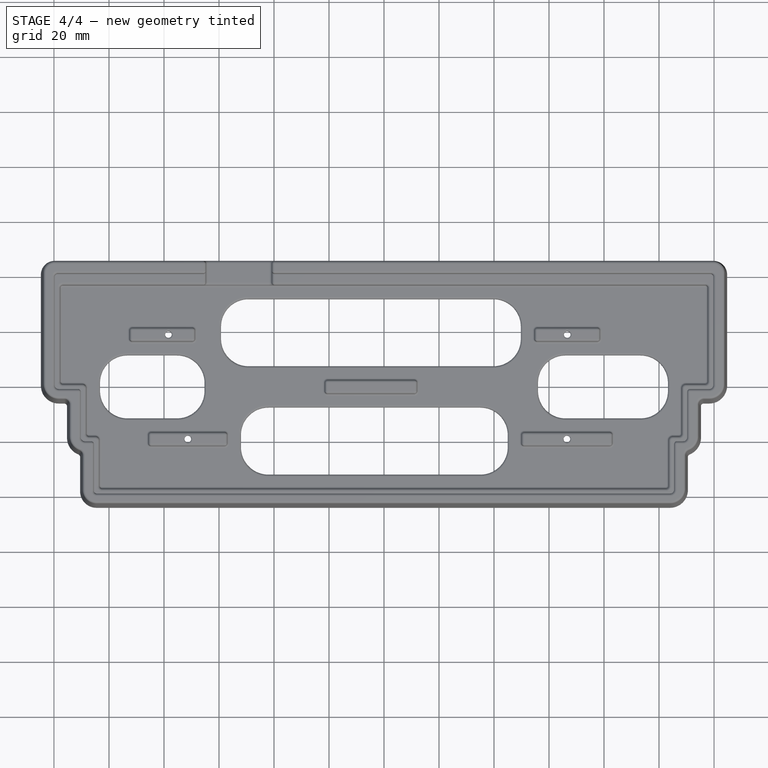
[diagram: stage 4 of 4 — top view after this stage's code; geometry added in this stage tinted green]
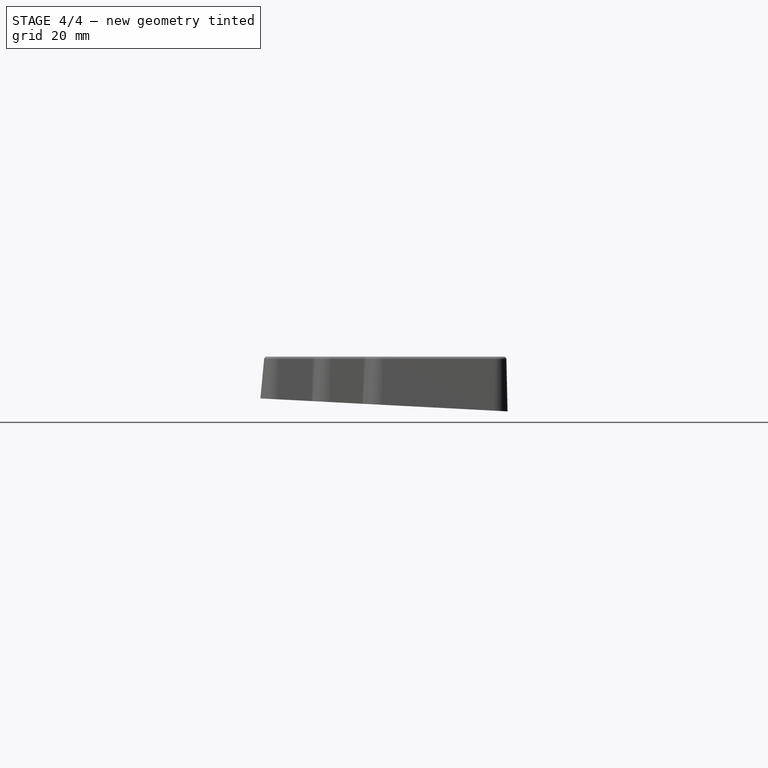
[diagram: stage 4 of 4 — right view after this stage's code; geometry added in this stage tinted green]
FEATURE [PartDesign::Chamfer] Chamfer
  Angle = 45
  Base = -> Fillet001 [Edge790,Edge789,Edge791,Edge792]
  BaseFeature = -> Fillet001
  ChamferType = 0
  FlipDirection = false
  Size = 3
  Size2 = 1
  SupportTransform = false
  UseAllEdges = false
FEATURE [PartDesign::Fillet] Fillet002
  Base = -> Chamfer [Edge182,Edge310,Edge308,Edge306]
  BaseFeature = -> Chamfer
  Radius = 0.5
  SupportTransform = false
  UseAllEdges = false
FEATURE [PartDesign::Body] Body
  Group = -> [Sketch,Sketch001,Sketch002,Sketch003,Sketch004,AdditiveLoft,Pocket,Pocket001,Hole,Sketch005,Pocket002,Sketch006,Pocket003,Fillet,Fillet001,Chamfer,Fillet002]
  Origin = -> Origin
  Placement = pos=(0,0,0) rot=(1,0,0;0.05236rad)
  Tip = -> Fillet002
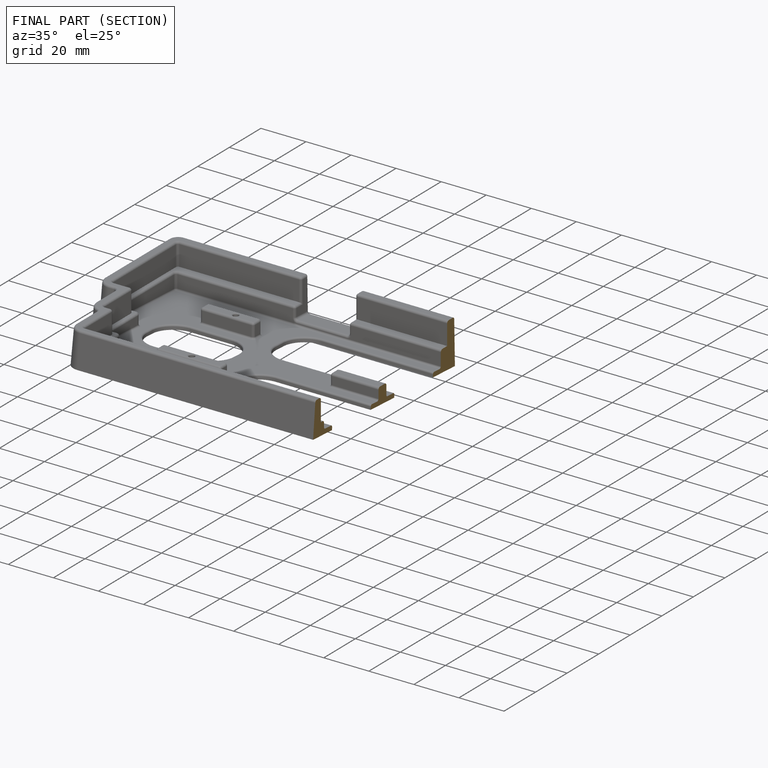
[diagram: finished part — half-section view (interior)]
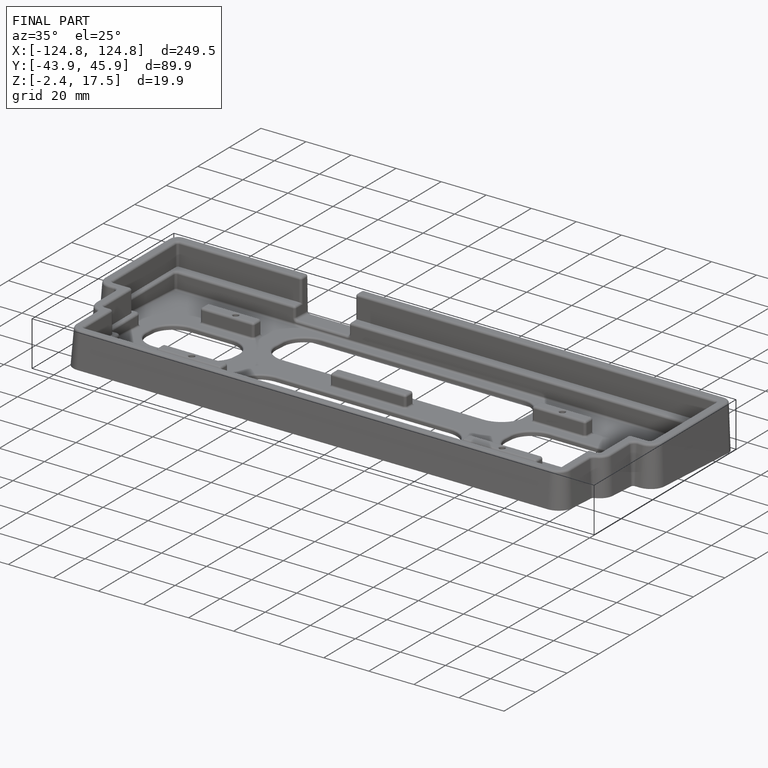
[diagram: finished part — iso view with bounding-box wireframe]
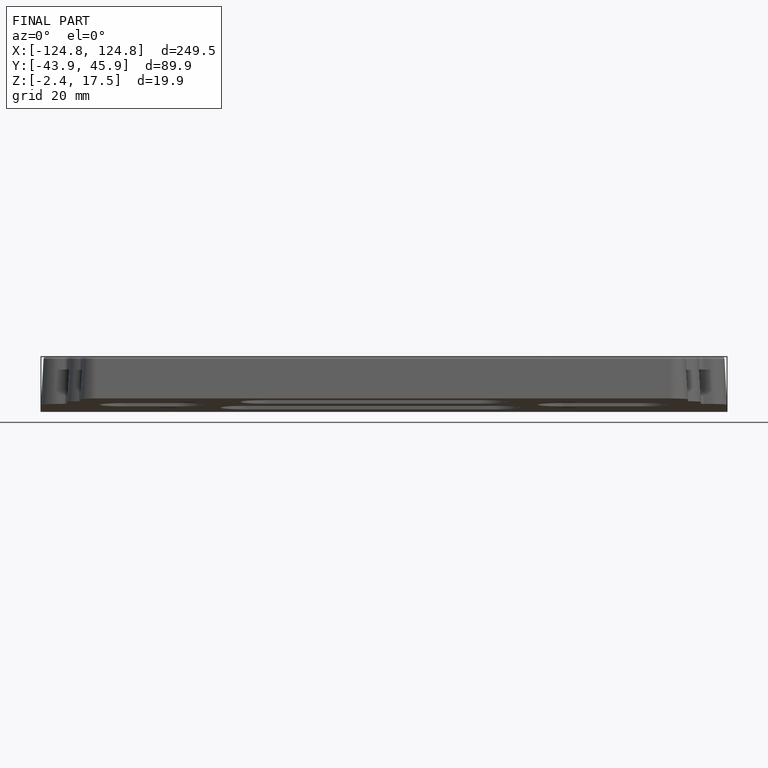
[diagram: finished part — front view with bounding-box wireframe]
